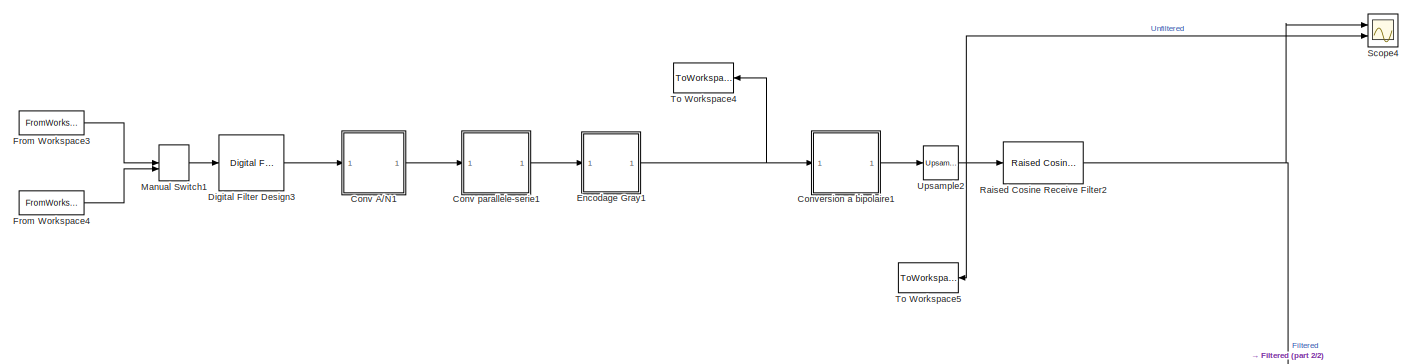
[diagram: root canvas - part 1/2, full width, top band]
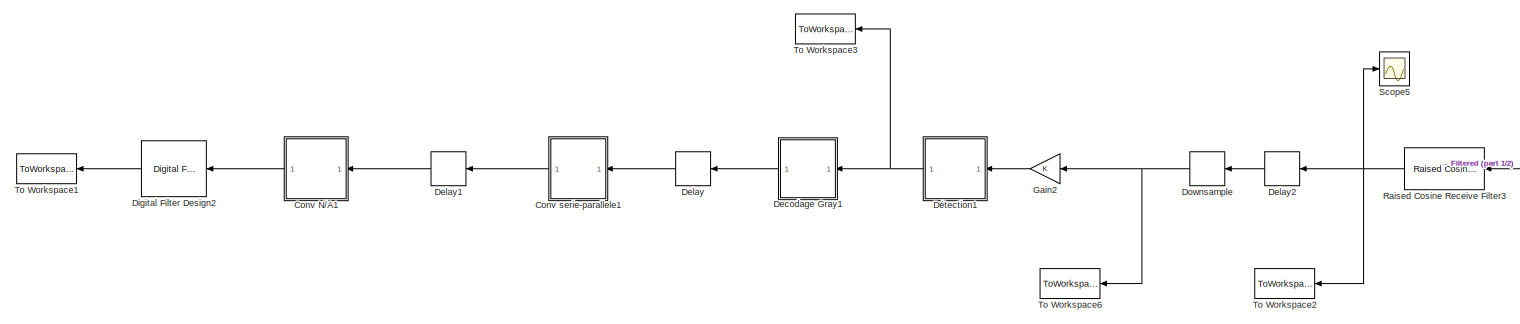
[diagram: root canvas - part 2/2, full width, bottom band]
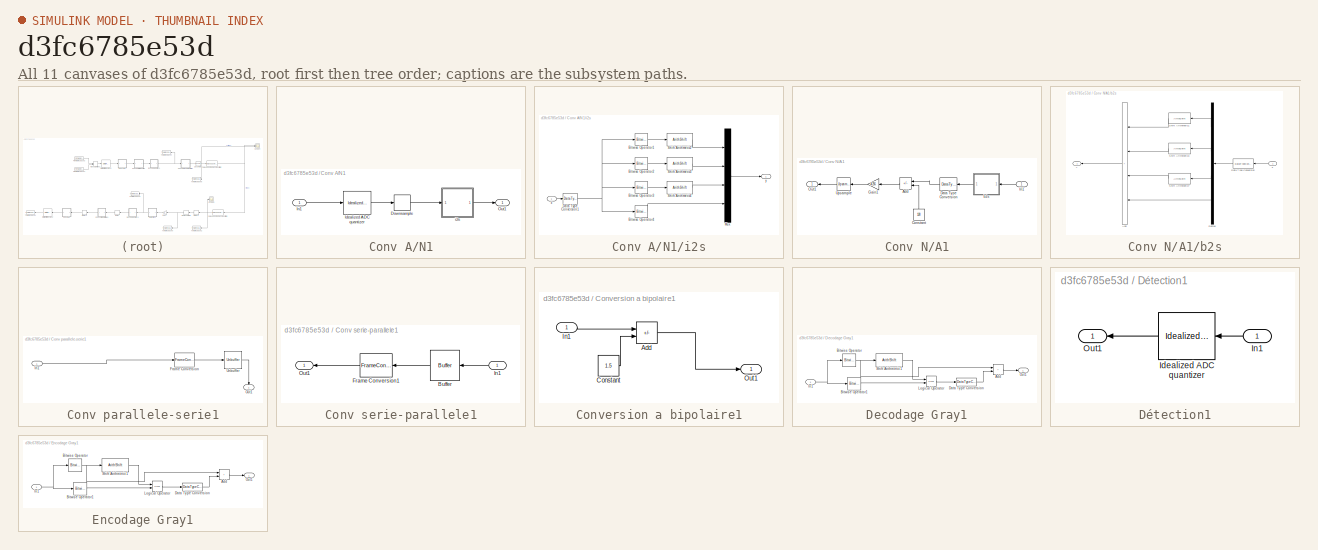
[diagram: thumbnail index - all 11 canvases of the model, root first then tree order]
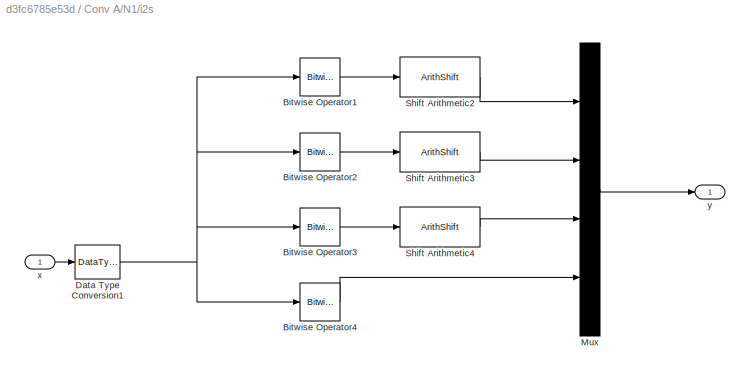
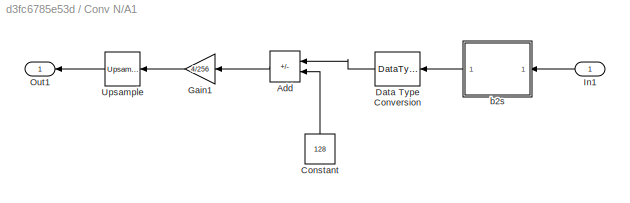
MODEL slx_d3fc6785e53d
KIND model
CONFIG AbsTol = auto
CONFIG EnableMultiTasking = on
CONFIG FixedStep = auto
CONFIG MaxStep = auto
CONFIG MinStep = auto
CONFIG RelTol = 1e-3
CONFIG SampleTimeConstraint = Unconstrained
CONFIG SolverName = FixedStepDiscrete
CONFIG StartTime = 0.0
CONFIG StopTime = 8.75
BLOCK [SubSystem] Conv A//N1
  Ports = [1, 1]
  RequestExecContextInheritance = off
BLOCK [DownSample] Conv A//N1/Downsample
  InputProcessing = Elements as channels (sample based)
  RateOptions = Allow multirate processing
  UserDataPersistent = on
BLOCK [Reference] Conv A//N1/Idealized ADC quantizer  REF=simulink_extras/Additional
Discrete/Idealized ADC quantizer
  AttributesFormatString = (settings: %<NumberOfConverterBits>-bit converter\nVmin: %<Vmin>, Vmax: %<Vmax>)
  Ports = [1, 1]
  SourceBlock = simulink_extras/Additional\nDiscrete/Idealized ADC quantizer
  SourceProductBaseCode = SL
  SourceType = IdealADC
BLOCK [Inport] Conv A//N1/In1
BLOCK [Outport] Conv A//N1/Out1
  VectorParamsAs1DForOutWhenUnconnected = off
BLOCK [SubSystem] Conv A//N1/i2s
  Ports = [1, 1]
  RequestExecContextInheritance = off
BLOCK [Reference] Conv A//N1/i2s/Bitwise Operator1  REF=simulink/Logic and Bit
Operations/Bitwise
Operator
  Ports = [1, 1]
  SourceBlock = simulink/Logic and Bit\nOperations/Bitwise\nOperator
  SourceProductBaseCode = SL
  SourceType = Bitwise Operator
BLOCK [Reference] Conv A//N1/i2s/Bitwise Operator2  REF=simulink/Logic and Bit
Operations/Bitwise
Operator
  Ports = [1, 1]
  SourceBlock = simulink/Logic and Bit\nOperations/Bitwise\nOperator
  SourceProductBaseCode = SL
  SourceType = Bitwise Operator
BLOCK [Reference] Conv A//N1/i2s/Bitwise Operator3  REF=simulink/Logic and Bit
Operations/Bitwise
Operator
  Ports = [1, 1]
  SourceBlock = simulink/Logic and Bit\nOperations/Bitwise\nOperator
  SourceProductBaseCode = SL
  SourceType = Bitwise Operator
BLOCK [Reference] Conv A//N1/i2s/Bitwise Operator4  REF=simulink/Logic and Bit
Operations/Bitwise
Operator
  Ports = [1, 1]
  SourceBlock = simulink/Logic and Bit\nOperations/Bitwise\nOperator
  SourceProductBaseCode = SL
  SourceType = Bitwise Operator
BLOCK [DataTypeConversion] Conv A//N1/i2s/Data Type Conversion1
  OutDataTypeStr = int16
  RndMeth = Floor
  SaturateOnIntegerOverflow = off
BLOCK [Mux] Conv A//N1/i2s/Mux
  DisplayOption = bar
  Ports = [4, 1]
BLOCK [ArithShift] Conv A//N1/i2s/Shift Arithmetic2
  BitShiftDirection = Right
  BitShiftNumber = 6
  InputPortMap = u0
  Ports = [1, 1]
BLOCK [ArithShift] Conv A//N1/i2s/Shift Arithmetic3
  BitShiftDirection = Right
  BitShiftNumber = 4
  InputPortMap = u0
  Ports = [1, 1]
BLOCK [ArithShift] Conv A//N1/i2s/Shift Arithmetic4
  BitShiftDirection = Right
  BitShiftNumber = 2
  InputPortMap = u0
  Ports = [1, 1]
BLOCK [Inport] Conv A//N1/i2s/x
BLOCK [Outport] Conv A//N1/i2s/y
  VectorParamsAs1DForOutWhenUnconnected = off
BLOCK [SubSystem] Conv N//A1
  Ports = [1, 1]
  RequestExecContextInheritance = off
BLOCK [Sum] Conv N//A1/Add
  IconShape = rectangular
  Inputs = +-
  Ports = [2, 1]
BLOCK [Constant] Conv N//A1/Constant
  NameLocation = right
  Value = 128
BLOCK [DataTypeConversion] Conv N//A1/Data Type Conversion
  OutDataTypeStr = double
  RndMeth = Floor
  SaturateOnIntegerOverflow = off
BLOCK [Gain] Conv N//A1/Gain1
  Gain = 4/256
  NameLocation = top
BLOCK [Inport] Conv N//A1/In1
BLOCK [Outport] Conv N//A1/Out1
  VectorParamsAs1DForOutWhenUnconnected = off
BLOCK [Reference] Conv N//A1/Upsample  REF=dspsigops/Upsample
  Ports = [1, 1]
  SourceBlock = dspsigops/Upsample
  SourceProductBaseCode = DS
  SourceType = Upsample
  UserDataPersistent = on
BLOCK [SubSystem] Conv N//A1/b2s
  Ports = [1, 1]
  RequestExecContextInheritance = off
BLOCK [Sum] Conv N//A1/b2s/Add
  IconShape = rectangular
  Inputs = ++++
  Ports = [4, 1]
BLOCK [DataTypeConversion] Conv N//A1/b2s/Data Type Conversion
  OutDataTypeStr = int16
  RndMeth = Round
  SaturateOnIntegerOverflow = off
BLOCK [Demux] Conv N//A1/b2s/Demux
  Ports = [1, 4]
BLOCK [ArithShift] Conv N//A1/b2s/Shift Arithmetic1
  BitShiftDirection = Left
  BitShiftNumber = 6
  InputPortMap = u0
  Ports = [1, 1]
BLOCK [ArithShift] Conv N//A1/b2s/Shift Arithmetic3
  BitShiftDirection = Left
  BitShiftNumber = 4
  InputPortMap = u0
  Ports = [1, 1]
BLOCK [ArithShift] Conv N//A1/b2s/Shift Arithmetic7
  BitShiftDirection = Left
  BitShiftNumber = 2
  InputPortMap = u0
  Ports = [1, 1]
BLOCK [Inport] Conv N//A1/b2s/x
BLOCK [Outport] Conv N//A1/b2s/y
  VectorParamsAs1DForOutWhenUnconnected = off
BLOCK [SubSystem] Conv parallele-serie1
  Ports = [1, 1]
  RequestExecContextInheritance = off
BLOCK [FrameConversion] Conv parallele-serie1/Frame Conversion
  Ports = [1, 1]
BLOCK [Inport] Conv parallele-serie1/In1
BLOCK [Outport] Conv parallele-serie1/Out1
  NameLocation = right
  VectorParamsAs1DForOutWhenUnconnected = off
BLOCK [Unbuffer] Conv parallele-serie1/Unbuffer
  Ports = [1, 1]
BLOCK [SubSystem] Conv serie-parallele1
  Ports = [1, 1]
  RequestExecContextInheritance = off
BLOCK [Buffer] Conv serie-parallele1/Buffer
  N = 4
BLOCK [FrameConversion] Conv serie-parallele1/Frame Conversion1
  OutFrame = Sample-based
  Ports = [1, 1]
BLOCK [Inport] Conv serie-parallele1/In1
BLOCK [Outport] Conv serie-parallele1/Out1
  VectorParamsAs1DForOutWhenUnconnected = off
BLOCK [SubSystem] Conversion a bipolaire1
  Ports = [1, 1]
  RequestExecContextInheritance = off
BLOCK [Sum] Conversion a bipolaire1/Add
  IconShape = rectangular
  Inputs = +-
  Ports = [2, 1]
BLOCK [Constant] Conversion a bipolaire1/Constant
  Value = 1.5
BLOCK [Inport] Conversion a bipolaire1/In1
BLOCK [Outport] Conversion a bipolaire1/Out1
  VectorParamsAs1DForOutWhenUnconnected = off
BLOCK [SubSystem] Decodage Gray1
  Ports = [1, 1]
  RequestExecContextInheritance = off
BLOCK [Sum] Decodage Gray1/Add
  IconShape = rectangular
  Ports = [2, 1]
BLOCK [Reference] Decodage Gray1/Bitwise Operator  REF=simulink/Logic and Bit
Operations/Bitwise
Operator
  Ports = [1, 1]
  SourceBlock = simulink/Logic and Bit\nOperations/Bitwise\nOperator
  SourceProductBaseCode = SL
  SourceType = Bitwise Operator
BLOCK [Reference] Decodage Gray1/Bitwise Operator1  REF=simulink/Logic and Bit
Operations/Bitwise
Operator
  Ports = [1, 1]
  SourceBlock = simulink/Logic and Bit\nOperations/Bitwise\nOperator
  SourceProductBaseCode = SL
  SourceType = Bitwise Operator
BLOCK [DataTypeConversion] Decodage Gray1/Data Type Conversion
  OutDataTypeStr = int8
  RndMeth = Floor
  SaturateOnIntegerOverflow = off
BLOCK [Inport] Decodage Gray1/In1
BLOCK [Logic] Decodage Gray1/Logical Operator
  AllPortsSameDT = off
  Operator = XOR
  Ports = [2, 1]
BLOCK [Outport] Decodage Gray1/Out1
  VectorParamsAs1DForOutWhenUnconnected = off
BLOCK [ArithShift] Decodage Gray1/Shift Arithmetic1
  BitShiftDirection = Right
  BitShiftNumber = 1
  InputPortMap = u0
  Ports = [1, 1]
BLOCK [Delay] Delay
  DelayLength = 1
  InitialCondition = 0
  InputPortMap = u0
  Ports = [1, 1]
BLOCK [Delay] Delay1
  DelayLength = 4
  InitialCondition = 0
  InputPortMap = u0
  Ports = [1, 1]
BLOCK [Delay] Delay2
  DelayLength = 0
  InitialCondition = 0
  InputPortMap = u0
  Ports = [1, 1]
BLOCK [Reference] Digital Filter Design2  REF=dsparch4/Digital
Filter Design
  Ports = [1, 1]
  SourceBlock = dsparch4/Digital\nFilter Design
  SourceProductBaseCode = DS
  SourceType = Digital Filter Design
  UserDataPersistent = on
BLOCK [Reference] Digital Filter Design3  REF=dsparch4/Digital
Filter Design
  NameLocation = top
  Ports = [1, 1]
  SourceBlock = dsparch4/Digital\nFilter Design
  SourceProductBaseCode = DS
  SourceType = Digital Filter Design
  UserDataPersistent = on
BLOCK [DownSample] Downsample
  InputProcessing = Elements as channels (sample based)
  N = 20
  RateOptions = Allow multirate processing
BLOCK [SubSystem] Détection1
  Ports = [1, 1]
  RequestExecContextInheritance = off
BLOCK [Reference] Détection1/Idealized ADC quantizer  REF=simulink_extras/Additional
Discrete/Idealized ADC quantizer
  AttributesFormatString = (settings: %<NumberOfConverterBits>-bit converter\nVmin: %<Vmin>, Vmax: %<Vmax>)
  Ports = [1, 1]
  SourceBlock = simulink_extras/Additional\nDiscrete/Idealized ADC quantizer
  SourceProductBaseCode = SL
  SourceType = IdealADC
BLOCK [Inport] Détection1/In1
BLOCK [Outport] Détection1/Out1
BLOCK [SubSystem] Encodage Gray1
  Ports = [1, 1]
  RequestExecContextInheritance = off
BLOCK [Sum] Encodage Gray1/Add
  IconShape = rectangular
  Ports = [2, 1]
BLOCK [Reference] Encodage Gray1/Bitwise Operator  REF=simulink/Logic and Bit
Operations/Bitwise
Operator
  Ports = [1, 1]
  SourceBlock = simulink/Logic and Bit\nOperations/Bitwise\nOperator
  SourceProductBaseCode = SL
  SourceType = Bitwise Operator
BLOCK [Reference] Encodage Gray1/Bitwise Operator1  REF=simulink/Logic and Bit
Operations/Bitwise
Operator
  Ports = [1, 1]
  SourceBlock = simulink/Logic and Bit\nOperations/Bitwise\nOperator
  SourceProductBaseCode = SL
  SourceType = Bitwise Operator
BLOCK [DataTypeConversion] Encodage Gray1/Data Type Conversion
  OutDataTypeStr = int8
  RndMeth = Floor
  SaturateOnIntegerOverflow = off
BLOCK [Inport] Encodage Gray1/In1
BLOCK [Logic] Encodage Gray1/Logical Operator
  AllPortsSameDT = off
  Operator = XOR
  Ports = [2, 1]
BLOCK [Outport] Encodage Gray1/Out1
  VectorParamsAs1DForOutWhenUnconnected = off
BLOCK [ArithShift] Encodage Gray1/Shift Arithmetic1
  BitShiftDirection = Right
  BitShiftNumber = 1
  InputPortMap = u0
  Ports = [1, 1]
BLOCK [FromWorkspace] From Workspace3
  Interpolate = off
  OutputAfterFinalValue = Setting to zero
  SampleTime = 1/16000
  VariableName = Sonm16
BLOCK [FromWorkspace] From Workspace4
  Interpolate = off
  OutputAfterFinalValue = Setting to zero
  SampleTime = 1/16000
  VariableName = Sonf16
BLOCK [Gain] Gain2
  NameLocation = top
BLOCK [ManualSwitch] Manual Switch1
BLOCK [Reference] Raised Cosine Receive Filter2  REF=commfilt2/Raised Cosine
Receive Filter
  Ports = [1, 1]
  SourceBlock = commfilt2/Raised Cosine\nReceive Filter
  SourceProductBaseCode = CM
  SourceType = Raised Cosine Receive Filter
BLOCK [Reference] Raised Cosine Receive Filter3  REF=commfilt2/Raised Cosine
Receive Filter
  Ports = [1, 1]
  SourceBlock = commfilt2/Raised Cosine\nReceive Filter
  SourceProductBaseCode = CM
  SourceType = Raised Cosine Receive Filter
BLOCK [Scope] Scope4
  Floating = off
  NumInputPorts = 2
  Ports = [2]
  ScopeSpecificationString = Simulink.scopes.TimeScopeBlockCfg('CurrentConfiguration', extmgr.ConfigurationSet(extmgr.Configuration('Core','General UI',true),extmgr.Configuration('Core','Source UI',true),extmgr.Configuration('Sources','WiredSimulink',true,'DataLoggingVariableName','ScopeData4'),extmgr.Configuration('Visuals','Time Domain',true,'SerializedDisplays',{struct('MinYLimReal','-1.875','MaxYLimReal','1.875','YLabelRe...<+1467ch>
BLOCK [Scope] Scope5
  Floating = off
  NumInputPorts = 1
  Ports = [1]
  ScopeSpecificationString = Simulink.scopes.TimeScopeBlockCfg('CurrentConfiguration', extmgr.ConfigurationSet(extmgr.Configuration('Core','General UI',true),extmgr.Configuration('Core','Source UI',true),extmgr.Configuration('Sources','WiredSimulink',true,'DataLoggingVariableName','ScopeData5'),extmgr.Configuration('Visuals','Time Domain',true,'SerializedDisplays',{struct('MinYLimReal','-37.5','MaxYLimReal','37.5','YLabelReal...<+1436ch>
BLOCK [ToWorkspace] To Workspace1
  MaxDataPoints = inf
  Ports = [1]
  SampleTime = -1
  Save2DSignal = 2-D array (concatenate along first dimension)
  VariableName = y
BLOCK [ToWorkspace] To Workspace2
  MaxDataPoints = inf
  Ports = [1]
  SampleTime = -1
  Save2DSignal = 2-D array (concatenate along first dimension)
  VariableName = y1
BLOCK [ToWorkspace] To Workspace3
  MaxDataPoints = inf
  Ports = [1]
  SampleTime = -1
  Save2DSignal = 2-D array (concatenate along first dimension)
  VariableName = y2
BLOCK [ToWorkspace] To Workspace4
  MaxDataPoints = inf
  Ports = [1]
  SampleTime = -1
  Save2DSignal = 2-D array (concatenate along first dimension)
  VariableName = y3
BLOCK [ToWorkspace] To Workspace5
  MaxDataPoints = inf
  Ports = [1]
  SampleTime = -1
  Save2DSignal = 2-D array (concatenate along first dimension)
  VariableName = y4
BLOCK [ToWorkspace] To Workspace6
  MaxDataPoints = inf
  Ports = [1]
  SampleTime = -1
  Save2DSignal = 2-D array (concatenate along first dimension)
  VariableName = y5
BLOCK [Reference] Upsample2  REF=dspsigops/Upsample
  Ports = [1, 1]
  SourceBlock = dspsigops/Upsample
  SourceProductBaseCode = DS
  SourceType = Upsample
  UserDataPersistent = on
LINE Conv A//N1/Downsample:1 -> Conv A//N1/i2s:1
LINE Conv A//N1/Idealized ADC quantizer:1 -> Conv A//N1/Downsample:1
LINE Conv A//N1/In1:1 -> Conv A//N1/Idealized ADC quantizer:1
LINE Conv A//N1/i2s/Bitwise Operator1:1 -> Conv A//N1/i2s/Shift Arithmetic2:1
LINE Conv A//N1/i2s/Bitwise Operator2:1 -> Conv A//N1/i2s/Shift Arithmetic3:1
LINE Conv A//N1/i2s/Bitwise Operator3:1 -> Conv A//N1/i2s/Shift Arithmetic4:1
LINE Conv A//N1/i2s/Bitwise Operator4:1 -> Conv A//N1/i2s/Mux:4
NET Conv A//N1/i2s/Data Type Conversion1:1 -> Conv A//N1/i2s/Bitwise Operator1:1, Conv A//N1/i2s/Bitwise Operator2:1, Conv A//N1/i2s/Bitwise Operator3:1, Conv A//N1/i2s/Bitwise Operator4:1
LINE Conv A//N1/i2s/Mux:1 -> Conv A//N1/i2s/y:1
LINE Conv A//N1/i2s/Shift Arithmetic2:1 -> Conv A//N1/i2s/Mux:1
LINE Conv A//N1/i2s/Shift Arithmetic3:1 -> Conv A//N1/i2s/Mux:2
LINE Conv A//N1/i2s/Shift Arithmetic4:1 -> Conv A//N1/i2s/Mux:3
LINE Conv A//N1/i2s/x:1 -> Conv A//N1/i2s/Data Type Conversion1:1
LINE Conv A//N1/i2s:1 -> Conv A//N1/Out1:1
LINE Conv A//N1:1 -> Conv parallele-serie1:1
LINE Conv N//A1/Add:1 -> Conv N//A1/Gain1:1
LINE Conv N//A1/Constant:1 -> Conv N//A1/Add:2
LINE Conv N//A1/Data Type Conversion:1 -> Conv N//A1/Add:1
LINE Conv N//A1/Gain1:1 -> Conv N//A1/Upsample:1
LINE Conv N//A1/In1:1 -> Conv N//A1/b2s:1
LINE Conv N//A1/Upsample:1 -> Conv N//A1/Out1:1
LINE Conv N//A1/b2s/Add:1 -> Conv N//A1/b2s/y:1
LINE Conv N//A1/b2s/Data Type Conversion:1 -> Conv N//A1/b2s/Demux:1
LINE Conv N//A1/b2s/Demux:1 -> Conv N//A1/b2s/Shift Arithmetic1:1
LINE Conv N//A1/b2s/Demux:2 -> Conv N//A1/b2s/Shift Arithmetic3:1
LINE Conv N//A1/b2s/Demux:3 -> Conv N//A1/b2s/Shift Arithmetic7:1
LINE Conv N//A1/b2s/Demux:4 -> Conv N//A1/b2s/Add:4
LINE Conv N//A1/b2s/Shift Arithmetic1:1 -> Conv N//A1/b2s/Add:1
LINE Conv N//A1/b2s/Shift Arithmetic3:1 -> Conv N//A1/b2s/Add:2
LINE Conv N//A1/b2s/Shift Arithmetic7:1 -> Conv N//A1/b2s/Add:3
LINE Conv N//A1/b2s/x:1 -> Conv N//A1/b2s/Data Type Conversion:1
LINE Conv N//A1/b2s:1 -> Conv N//A1/Data Type Conversion:1
LINE Conv N//A1:1 -> Digital Filter Design2:1
LINE Conv parallele-serie1/Frame Conversion:1 -> Conv parallele-serie1/Unbuffer:1
LINE Conv parallele-serie1/In1:1 -> Conv parallele-serie1/Frame Conversion:1
LINE Conv parallele-serie1/Unbuffer:1 -> Conv parallele-serie1/Out1:1
LINE Conv parallele-serie1:1 -> Encodage Gray1:1
LINE Conv serie-parallele1/Buffer:1 -> Conv serie-parallele1/Frame Conversion1:1
LINE Conv serie-parallele1/Frame Conversion1:1 -> Conv serie-parallele1/Out1:1
LINE Conv serie-parallele1/In1:1 -> Conv serie-parallele1/Buffer:1
LINE Conv serie-parallele1:1 -> Delay1:1
LINE Conversion a bipolaire1/Add:1 -> Conversion a bipolaire1/Out1:1
LINE Conversion a bipolaire1/Constant:1 -> Conversion a bipolaire1/Add:2
LINE Conversion a bipolaire1/In1:1 -> Conversion a bipolaire1/Add:1
LINE Conversion a bipolaire1:1 -> Upsample2:1
LINE Decodage Gray1/Add:1 -> Decodage Gray1/Out1:1
LINE Decodage Gray1/Bitwise Operator1:1 -> Decodage Gray1/Logical Operator:2
NET Decodage Gray1/Bitwise Operator:1 -> Decodage Gray1/Add:1, Decodage Gray1/Shift Arithmetic1:1
LINE Decodage Gray1/Data Type Conversion:1 -> Decodage Gray1/Add:2
NET Decodage Gray1/In1:1 -> Decodage Gray1/Bitwise Operator1:1, Decodage Gray1/Bitwise Operator:1
LINE Decodage Gray1/Logical Operator:1 -> Decodage Gray1/Data Type Conversion:1
LINE Decodage Gray1/Shift Arithmetic1:1 -> Decodage Gray1/Logical Operator:1
LINE Decodage Gray1:1 -> Delay:1
LINE Delay1:1 -> Conv N//A1:1
LINE Delay2:1 -> Downsample:1
LINE Delay:1 -> Conv serie-parallele1:1
LINE Digital Filter Design2:1 -> To Workspace1:1
LINE Digital Filter Design3:1 -> Conv A//N1:1
NET Downsample:1 -> Gain2:1, To Workspace6:1
LINE Détection1/Idealized ADC quantizer:1 -> Détection1/Out1:1
LINE Détection1/In1:1 -> Détection1/Idealized ADC quantizer:1
NET Détection1:1 -> Decodage Gray1:1, To Workspace3:1
LINE Encodage Gray1/Add:1 -> Encodage Gray1/Out1:1
LINE Encodage Gray1/Bitwise Operator1:1 -> Encodage Gray1/Logical Operator:2
NET Encodage Gray1/Bitwise Operator:1 -> Encodage Gray1/Add:1, Encodage Gray1/Shift Arithmetic1:1
LINE Encodage Gray1/Data Type Conversion:1 -> Encodage Gray1/Add:2
NET Encodage Gray1/In1:1 -> Encodage Gray1/Bitwise Operator1:1, Encodage Gray1/Bitwise Operator:1
LINE Encodage Gray1/Logical Operator:1 -> Encodage Gray1/Data Type Conversion:1
LINE Encodage Gray1/Shift Arithmetic1:1 -> Encodage Gray1/Logical Operator:1
NET Encodage Gray1:1 -> Conversion a bipolaire1:1, To Workspace4:1
LINE From Workspace3:1 -> Manual Switch1:1
LINE From Workspace4:1 -> Manual Switch1:2
LINE Gain2:1 -> Détection1:1
LINE Manual Switch1:1 -> Digital Filter Design3:1
NET Raised Cosine Receive Filter2:1 -> Raised Cosine Receive Filter3:1, Scope4:1
NET Raised Cosine Receive Filter3:1 -> Delay2:1, Scope5:1, To Workspace2:1
NET Upsample2:1 -> Raised Cosine Receive Filter2:1, Scope4:2, To Workspace5:1
note: NET lines group one-source signal fan-out (src -> all destinations, sorted); 1:1 wires keep LINE
